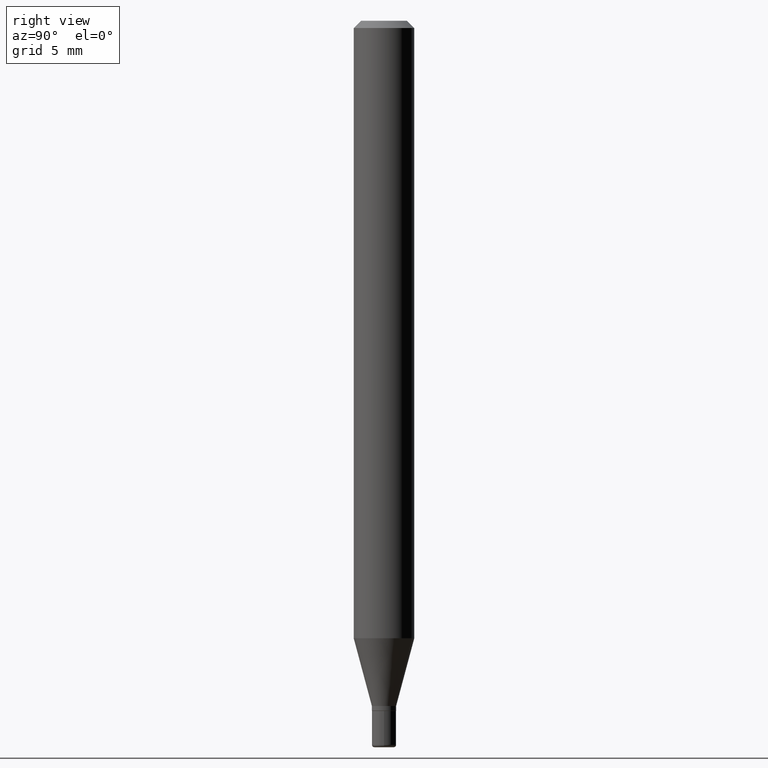
[diagram: clean part render]
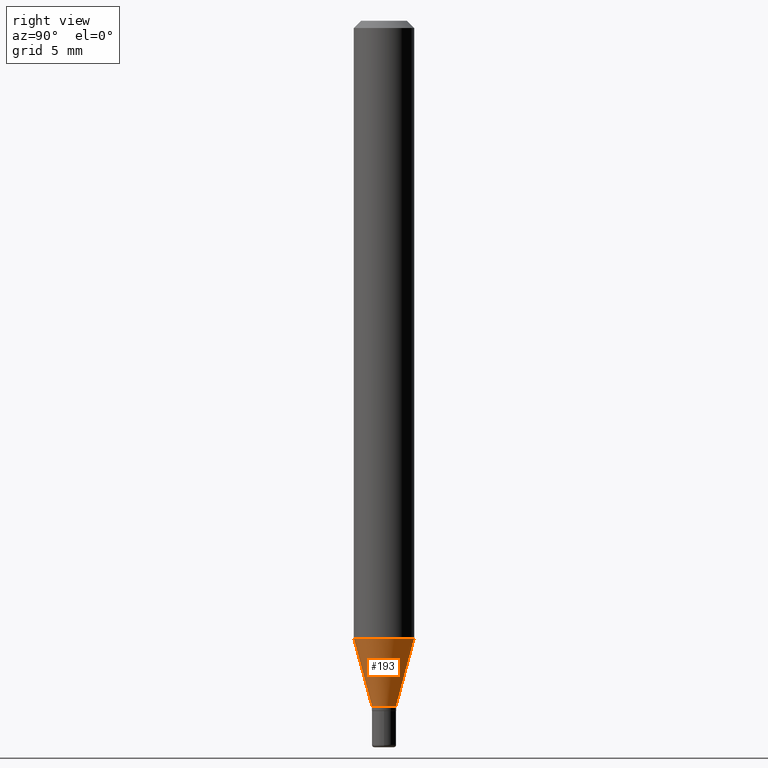
[diagram: same view with one face highlighted and labeled with its STEP entity id]
A machine part, right view. The second image highlights one B-rep face of the part: STEP entity #193.
In plain terms, the highlighted conical surface has half-angle 15 deg.
Its self-contained STEP definition (entity closure, byte-faithful):
#17 = CARTESIAN_POINT ( 'NONE',  ( 1.776356839400603332E-16, 0.02499999999999516151, -1.415000000000000258 ) ) ;
#37 = AXIS2_PLACEMENT_3D ( 'NONE', #246, #278, #399 ) ;
#50 = CIRCLE ( 'NONE', #422, 0.02500000000000010200 ) ;
#53 = LINE ( 'NONE', #17, #95 ) ;
#63 = ORIENTED_EDGE ( 'NONE', *, *, #134, .F. ) ;
#64 = EDGE_CURVE ( 'NONE', #244, #380, #50, .T. ) ;
#95 = VECTOR ( 'NONE', #341, 39.37007874015748854 ) ;
#103 = VERTEX_POINT ( 'NONE', #206 ) ;
#134 = EDGE_CURVE ( 'NONE', #170, #103, #403, .T. ) ;
#161 = CARTESIAN_POINT ( 'NONE',  ( 3.118189523210138983E-29, -4.451664595711349999E-15, -1.275048094716167757 ) ) ;
#170 = VERTEX_POINT ( 'NONE', #448 ) ;
#182 = CARTESIAN_POINT ( 'NONE',  ( 3.108624468950771410E-16, 0.02499999999999516151, -1.415000000000000258 ) ) ;
#193 = ADVANCED_FACE ( 'NONE', ( #281 ), #463, .T. ) ;
#206 = CARTESIAN_POINT ( 'NONE',  ( 4.440892098500935790E-16, 0.06249999999999553135, -1.275048094716167979 ) ) ;
#208 = DIRECTION ( 'NONE',  ( -1.807323732225323434E-15, -0.2588190451025172423, 0.9659258262890690894 ) ) ;
#220 = DIRECTION ( 'NONE',  ( -6.982962677686265922E-15, -1.000000000000000000, 0.000000000000000000 ) ) ;
#244 = VERTEX_POINT ( 'NONE', #255 ) ;
#246 = CARTESIAN_POINT ( 'NONE',  ( 3.460448428280295330E-29, -4.940288471497833014E-15, -1.415000000000000258 ) ) ;
#247 = ORIENTED_EDGE ( 'NONE', *, *, #64, .T. ) ;
#255 = CARTESIAN_POINT ( 'NONE',  ( -1.745740669421227467E-16, -0.02500000000000503902, -1.415000000000000258 ) ) ;
#264 = EDGE_CURVE ( 'NONE', #244, #170, #302, .T. ) ;
#278 = DIRECTION ( 'NONE',  ( -2.445546592424236492E-29, 3.491369944521436528E-15, 1.000000000000000000 ) ) ;
#281 = FACE_OUTER_BOUND ( 'NONE', #385, .T. ) ;
#302 = LINE ( 'NONE', #453, #382 ) ;
#320 = DIRECTION ( 'NONE',  ( -6.982962677686265922E-15, -1.000000000000000000, 4.370956789862821150E-15 ) ) ;
#321 = EDGE_CURVE ( 'NONE', #380, #103, #53, .T. ) ;
#337 = AXIS2_PLACEMENT_3D ( 'NONE', #161, #359, #320 ) ;
#341 = DIRECTION ( 'NONE',  ( 1.839019923739593610E-15, 0.2588190451025240146, 0.9659258262890673130 ) ) ;
#353 = CARTESIAN_POINT ( 'NONE',  ( 3.460448428280295330E-29, -4.940288471497833014E-15, -1.415000000000000258 ) ) ;
#359 = DIRECTION ( 'NONE',  ( -2.445546592424236492E-29, 3.491369944521436528E-15, 1.000000000000000000 ) ) ;
#380 = VERTEX_POINT ( 'NONE', #182 ) ;
#382 = VECTOR ( 'NONE', #208, 39.37007874015748854 ) ;
#385 = EDGE_LOOP ( 'NONE', ( #247, #420, #63, #485 ) ) ;
#399 = DIRECTION ( 'NONE',  ( -6.982962677686265922E-15, -1.000000000000000000, 0.000000000000000000 ) ) ;
#403 = CIRCLE ( 'NONE', #337, 0.06250000000000000000 ) ;
#420 = ORIENTED_EDGE ( 'NONE', *, *, #321, .T. ) ;
#422 = AXIS2_PLACEMENT_3D ( 'NONE', #353, #423, #220 ) ;
#423 = DIRECTION ( 'NONE',  ( -2.445546592424236492E-29, 3.491369944521436528E-15, 1.000000000000000000 ) ) ;
#448 = CARTESIAN_POINT ( 'NONE',  ( -4.364351673553606080E-16, -0.06250000000000446865, -1.275048094716167535 ) ) ;
#453 = CARTESIAN_POINT ( 'NONE',  ( -1.745740669421227467E-16, -0.02500000000000503902, -1.415000000000000258 ) ) ;
#463 = CONICAL_SURFACE ( 'NONE', #37, 0.02500000000000010200, 0.2617993877991493523 ) ;
#485 = ORIENTED_EDGE ( 'NONE', *, *, #264, .F. ) ;